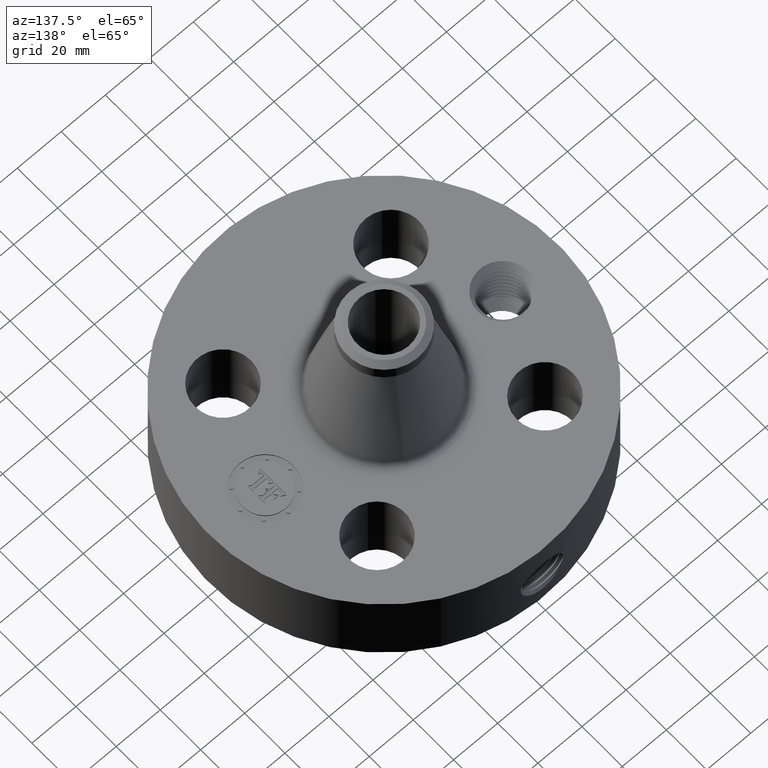
[diagram: clean part render]
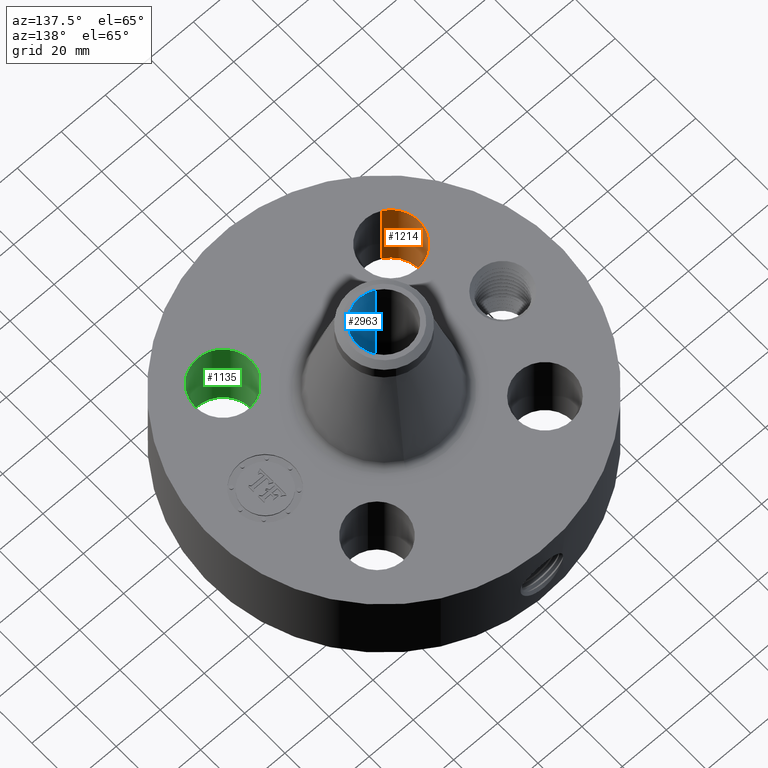
[diagram: same view with three faces highlighted in distinct colors, each labeled with its STEP entity id]
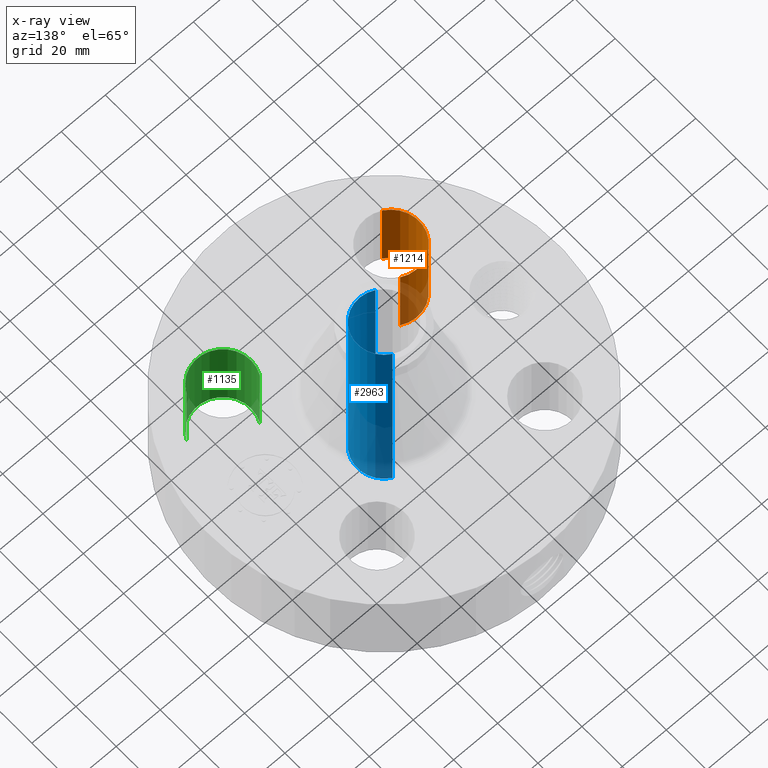
[diagram: x-ray of the same camera — body ghosted, the three highlighted faces saturated]
A machine part, auxiliary view with three faces highlighted in distinct colors.
The next image is the same camera in x-ray (body ghosted, the three faces saturated) — at least one of them is partly hidden behind the body in this view.
Their STEP definitions:

[orange] entity #1214 — the highlighted cylindrical surface (partial cylindrical patch) has radius 12.7 mm, axis along (0, -0, -1).
#269=AXIS2_PLACEMENT_3D('Circle Axis2P3D',#267,#268,$) ;
#505=AXIS2_PLACEMENT_3D('Circle Axis2P3D',#503,#504,$) ;
#1189=AXIS2_PLACEMENT_3D('Cylinder Axis2P3D',#1186,#1187,#1188) ;
#262=CARTESIAN_POINT('Vertex',(-1.26288914072,-1.06381062908,0.250000000001)) ;
#264=CARTESIAN_POINT('Vertex',(-1.74231467933,-1.94139319097,0.250000000001)) ;
#267=CARTESIAN_POINT('Axis2P3D Location',(-1.50260191003,-1.50260191003,0.250000000001)) ;
#503=CARTESIAN_POINT('Axis2P3D Location',(-1.50260191003,-1.50260191003,1.75000000001)) ;
#507=CARTESIAN_POINT('Vertex',(-1.74231467933,-1.94139319097,1.75000000001)) ;
#509=CARTESIAN_POINT('Vertex',(-1.26288914072,-1.06381062908,1.75000000001)) ;
#1186=CARTESIAN_POINT('Axis2P3D Location',(-1.50260191003,-1.50260191003,1.74606299213)) ;
#1191=CARTESIAN_POINT('Line Origine',(-1.26288914072,-1.06381062908,1.)) ;
#1196=CARTESIAN_POINT('Line Origine',(-1.74231467933,-1.94139319097,1.)) ;
#268=DIRECTION('Axis2P3D Direction',(0.,0.,-0.0393700787402)) ;
#504=DIRECTION('Axis2P3D Direction',(0.,0.,-0.0393700787402)) ;
#1187=DIRECTION('Axis2P3D Direction',(0.,-0.,-0.0393700787402)) ;
#1188=DIRECTION('Axis2P3D XDirection',(-0.0188750212049,-0.0345504945626,0.)) ;
#1192=DIRECTION('Vector Direction',(0.,0.,-0.0393700787402)) ;
#1197=DIRECTION('Vector Direction',(0.,0.,-0.0393700787402)) ;
#1193=VECTOR('Line Direction',#1192,0.0393700787402) ;
#1198=VECTOR('Line Direction',#1197,0.0393700787402) ;
#1209=ORIENTED_EDGE('',*,*,#1200,.F.) ;
#1210=ORIENTED_EDGE('',*,*,#271,.T.) ;
#1211=ORIENTED_EDGE('',*,*,#1195,.T.) ;
#1212=ORIENTED_EDGE('',*,*,#511,.F.) ;
#1214=ADVANCED_FACE('PartBody',(#1213),#1190,.F.) ;
#270=CIRCLE('generated circle',#269,0.500000000002) ;
#506=CIRCLE('generated circle',#505,0.500000000002) ;
#1190=CYLINDRICAL_SURFACE('generated cylinder',#1189,0.500000000002) ;
#271=EDGE_CURVE('',#265,#263,#270,.T.) ;
#511=EDGE_CURVE('',#508,#510,#506,.T.) ;
#1195=EDGE_CURVE('',#263,#510,#1194,.F.) ;
#1200=EDGE_CURVE('',#265,#508,#1199,.F.) ;
#1208=EDGE_LOOP('',(#1209,#1210,#1211,#1212)) ;
#1213=FACE_OUTER_BOUND('',#1208,.T.) ;
#1194=LINE('Line',#1191,#1193) ;
#1199=LINE('Line',#1196,#1198) ;
#263=VERTEX_POINT('',#262) ;
#265=VERTEX_POINT('',#264) ;
#508=VERTEX_POINT('',#507) ;
#510=VERTEX_POINT('',#509) ;

[blue] entity #2963 — the highlighted cylindrical surface (edge-blend (fillet) strip) has radius 12.1539 mm, axis along (0, 0, -1).
#2197=AXIS2_PLACEMENT_3D('Circle Axis2P3D',#2195,#2196,$) ;
#2894=AXIS2_PLACEMENT_3D('Cylinder Axis2P3D',#2891,#2892,#2893) ;
#2898=AXIS2_PLACEMENT_3D('Circle Axis2P3D',#2896,#2897,$) ;
#2195=CARTESIAN_POINT('Axis2P3D Location',(0.,0.,0.)) ;
#2199=CARTESIAN_POINT('Vertex',(0.229405120223,0.419923255866,-2.79741234551E-015)) ;
#2201=CARTESIAN_POINT('Vertex',(-0.229405120223,-0.419923255866,-2.79741234551E-015)) ;
#2891=CARTESIAN_POINT('Axis2P3D Location',(0.,0.,1.93500000001)) ;
#2896=CARTESIAN_POINT('Axis2P3D Location',(0.,0.,3.87000000002)) ;
#2900=CARTESIAN_POINT('Vertex',(0.229405120223,0.419923255866,3.87000000002)) ;
#2902=CARTESIAN_POINT('Vertex',(-0.229405120223,-0.419923255866,3.87000000002)) ;
#2905=CARTESIAN_POINT('Line Origine',(0.229405120223,0.419923255866,1.93500000001)) ;
#2910=CARTESIAN_POINT('Line Origine',(-0.229405120223,-0.419923255866,1.93500000001)) ;
#2922=CARTESIAN_POINT('Control Point',(0.109697820237,-0.465755985723,0.880071807678)) ;
#2923=CARTESIAN_POINT('Control Point',(0.104177837694,-0.467056087217,0.869967547409)) ;
#2924=CARTESIAN_POINT('Control Point',(0.0975045174813,-0.4685415176,0.860517221376)) ;
#2925=CARTESIAN_POINT('Control Point',(0.0897779513574,-0.470117583999,0.851884766118)) ;
#2926=CARTESIAN_POINT('Control Point',(0.0639315916564,-0.474752036692,0.828955975516)) ;
#2927=CARTESIAN_POINT('Control Point',(0.0311967031072,-0.478288694724,0.815624462941)) ;
#2928=CARTESIAN_POINT('Control Point',(0.00751284533595,-0.479346773796,0.811951162427)) ;
#2929=CARTESIAN_POINT('Control Point',(-0.0421723244799,-0.478056230607,0.816109853713)) ;
#2930=CARTESIAN_POINT('Control Point',(-0.0843742163044,-0.471748522023,0.8424910972)) ;
#2931=CARTESIAN_POINT('Control Point',(-0.102414130011,-0.467700997156,0.861637037401)) ;
#2932=CARTESIAN_POINT('Control Point',(-0.1241118348,-0.462216658789,0.901519246281)) ;
#2933=CARTESIAN_POINT('Control Point',(-0.126979028361,-0.46132253213,0.946474186133)) ;
#2934=CARTESIAN_POINT('Control Point',(-0.124533991093,-0.462035987705,0.965540609069)) ;
#2935=CARTESIAN_POINT('Control Point',(-0.118623789208,-0.463653684584,0.983589315723)) ;
#2936=CARTESIAN_POINT('Control Point',(-0.109697820237,-0.465755985723,0.99992819233)) ;
#2937=CARTESIAN_POINT('Vertex',(0.109697820237,-0.465755985723,0.880071807678)) ;
#2939=CARTESIAN_POINT('Vertex',(-0.109697820237,-0.465755985723,0.99992819233)) ;
#2943=CARTESIAN_POINT('Control Point',(0.109697820237,-0.465755985723,0.880071807678)) ;
#2944=CARTESIAN_POINT('Control Point',(0.116214040269,-0.464221244022,0.89199966844)) ;
#2945=CARTESIAN_POINT('Control Point',(0.121123028442,-0.462944768755,0.904838771101)) ;
#2946=CARTESIAN_POINT('Control Point',(0.124253741619,-0.462085067386,0.918310318249)) ;
#2947=CARTESIAN_POINT('Control Point',(0.127565334609,-0.461192901403,0.954994788777)) ;
#2948=CARTESIAN_POINT('Control Point',(0.117586874242,-0.463885262041,0.991025045657)) ;
#2949=CARTESIAN_POINT('Control Point',(0.106279150004,-0.466884895123,1.01154529415)) ;
#2950=CARTESIAN_POINT('Control Point',(0.0752451913734,-0.473485690124,1.04622562139)) ;
#2951=CARTESIAN_POINT('Control Point',(0.0320311233305,-0.478229988728,1.06416341631)) ;
#2952=CARTESIAN_POINT('Control Point',(0.00837055083684,-0.479333316225,1.06799736886)) ;
#2953=CARTESIAN_POINT('Control Point',(-0.0350448263764,-0.478285904815,1.06465481917)) ;
#2954=CARTESIAN_POINT('Control Point',(-0.0728669449165,-0.473377074714,1.04432379685)) ;
#2955=CARTESIAN_POINT('Control Point',(-0.0880392295245,-0.470616335343,1.0318590857)) ;
#2956=CARTESIAN_POINT('Control Point',(-0.100477482848,-0.46792761839,1.01680590671)) ;
#2957=CARTESIAN_POINT('Control Point',(-0.109697820237,-0.465755985723,0.99992819233)) ;
#2196=DIRECTION('Axis2P3D Direction',(0.,0.,-0.0393700787402)) ;
#2892=DIRECTION('Axis2P3D Direction',(0.,0.,-0.0393700787402)) ;
#2893=DIRECTION('Axis2P3D XDirection',(-0.0188750212049,-0.0345504945626,0.)) ;
#2897=DIRECTION('Axis2P3D Direction',(0.,0.,-0.0393700787402)) ;
#2906=DIRECTION('Vector Direction',(0.,0.,-0.0393700787402)) ;
#2911=DIRECTION('Vector Direction',(0.,0.,-0.0393700787402)) ;
#2907=VECTOR('Line Direction',#2906,0.0393700787402) ;
#2912=VECTOR('Line Direction',#2911,0.0393700787402) ;
#2916=ORIENTED_EDGE('',*,*,#2904,.F.) ;
#2917=ORIENTED_EDGE('',*,*,#2909,.T.) ;
#2918=ORIENTED_EDGE('',*,*,#2203,.T.) ;
#2919=ORIENTED_EDGE('',*,*,#2914,.F.) ;
#2960=ORIENTED_EDGE('',*,*,#2941,.F.) ;
#2961=ORIENTED_EDGE('',*,*,#2958,.T.) ;
#2962=FACE_BOUND('',#2959,.T.) ;
#2963=ADVANCED_FACE('PartBody',(#2920,#2962),#2895,.F.) ;
#2921=B_SPLINE_CURVE_WITH_KNOTS('',5,(#2922,#2923,#2924,#2925,#2926,#2927,#2928,#2929,#2930,#2931,#2932,#2933,#2934,#2935,#2936),.UNSPECIFIED.,.F.,.U.,(6,3,3,3,6),(0.,2.08106888046,6.2203644847,10.8026371749,14.1677848198),.UNSPECIFIED.) ;
#2942=B_SPLINE_CURVE_WITH_KNOTS('',5,(#2943,#2944,#2945,#2946,#2947,#2948,#2949,#2950,#2951,#2952,#2953,#2954,#2955,#2956,#2957),.UNSPECIFIED.,.F.,.U.,(6,3,3,3,6),(0.,2.45665681416,6.55204671478,10.6921612103,14.1682876397),.UNSPECIFIED.) ;
#2198=CIRCLE('generated circle',#2197,0.478500000002) ;
#2899=CIRCLE('generated circle',#2898,0.478500000002) ;
#2895=CYLINDRICAL_SURFACE('generated cylinder',#2894,0.478500000002) ;
#2203=EDGE_CURVE('',#2200,#2202,#2198,.T.) ;
#2904=EDGE_CURVE('',#2901,#2903,#2899,.T.) ;
#2909=EDGE_CURVE('',#2901,#2200,#2908,.T.) ;
#2914=EDGE_CURVE('',#2903,#2202,#2913,.T.) ;
#2941=EDGE_CURVE('',#2938,#2940,#2921,.T.) ;
#2958=EDGE_CURVE('',#2938,#2940,#2942,.T.) ;
#2915=EDGE_LOOP('',(#2916,#2917,#2918,#2919)) ;
#2959=EDGE_LOOP('',(#2960,#2961)) ;
#2920=FACE_OUTER_BOUND('',#2915,.T.) ;
#2908=LINE('Line',#2905,#2907) ;
#2913=LINE('Line',#2910,#2912) ;
#2200=VERTEX_POINT('',#2199) ;
#2202=VERTEX_POINT('',#2201) ;
#2901=VERTEX_POINT('',#2900) ;
#2903=VERTEX_POINT('',#2902) ;
#2938=VERTEX_POINT('',#2937) ;
#2940=VERTEX_POINT('',#2939) ;

[green] entity #1135 — the highlighted cylindrical surface (partial cylindrical patch) has radius 12.7 mm, axis along (0, -0, -1).
#224=AXIS2_PLACEMENT_3D('Circle Axis2P3D',#222,#223,$) ;
#478=AXIS2_PLACEMENT_3D('Circle Axis2P3D',#476,#477,$) ;
#1117=AXIS2_PLACEMENT_3D('Cylinder Axis2P3D',#1114,#1115,#1116) ;
#222=CARTESIAN_POINT('Axis2P3D Location',(1.50260191003,-1.50260191003,0.250000000001)) ;
#226=CARTESIAN_POINT('Vertex',(1.94139319097,-1.74231467933,0.250000000001)) ;
#228=CARTESIAN_POINT('Vertex',(1.06381062908,-1.26288914072,0.250000000001)) ;
#471=CARTESIAN_POINT('Vertex',(1.06381062908,-1.26288914072,1.75000000001)) ;
#473=CARTESIAN_POINT('Vertex',(1.94139319097,-1.74231467933,1.75000000001)) ;
#476=CARTESIAN_POINT('Axis2P3D Location',(1.50260191003,-1.50260191003,1.75000000001)) ;
#1114=CARTESIAN_POINT('Axis2P3D Location',(1.50260191003,-1.50260191003,1.74606299213)) ;
#1119=CARTESIAN_POINT('Line Origine',(1.94139319097,-1.74231467933,1.)) ;
#1124=CARTESIAN_POINT('Line Origine',(1.06381062908,-1.26288914072,1.)) ;
#223=DIRECTION('Axis2P3D Direction',(0.,0.,-0.0393700787402)) ;
#477=DIRECTION('Axis2P3D Direction',(0.,0.,-0.0393700787402)) ;
#1115=DIRECTION('Axis2P3D Direction',(0.,-0.,-0.0393700787402)) ;
#1116=DIRECTION('Axis2P3D XDirection',(-0.0345504945626,0.0188750212049,0.)) ;
#1120=DIRECTION('Vector Direction',(0.,0.,-0.0393700787402)) ;
#1125=DIRECTION('Vector Direction',(0.,0.,-0.0393700787402)) ;
#1121=VECTOR('Line Direction',#1120,0.0393700787402) ;
#1126=VECTOR('Line Direction',#1125,0.0393700787402) ;
#1130=ORIENTED_EDGE('',*,*,#1123,.F.) ;
#1131=ORIENTED_EDGE('',*,*,#230,.T.) ;
#1132=ORIENTED_EDGE('',*,*,#1128,.T.) ;
#1133=ORIENTED_EDGE('',*,*,#480,.F.) ;
#1135=ADVANCED_FACE('PartBody',(#1134),#1118,.F.) ;
#225=CIRCLE('generated circle',#224,0.500000000002) ;
#479=CIRCLE('generated circle',#478,0.500000000002) ;
#1118=CYLINDRICAL_SURFACE('generated cylinder',#1117,0.500000000002) ;
#230=EDGE_CURVE('',#227,#229,#225,.T.) ;
#480=EDGE_CURVE('',#474,#472,#479,.T.) ;
#1123=EDGE_CURVE('',#227,#474,#1122,.F.) ;
#1128=EDGE_CURVE('',#229,#472,#1127,.F.) ;
#1129=EDGE_LOOP('',(#1130,#1131,#1132,#1133)) ;
#1134=FACE_OUTER_BOUND('',#1129,.T.) ;
#1122=LINE('Line',#1119,#1121) ;
#1127=LINE('Line',#1124,#1126) ;
#227=VERTEX_POINT('',#226) ;
#229=VERTEX_POINT('',#228) ;
#472=VERTEX_POINT('',#471) ;
#474=VERTEX_POINT('',#473) ;